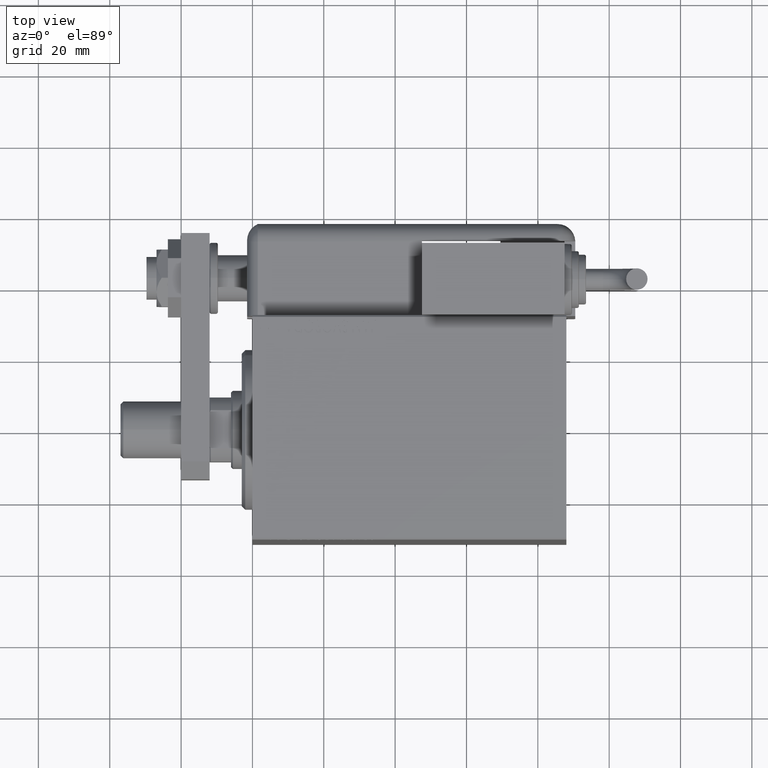
[diagram: clean part render]
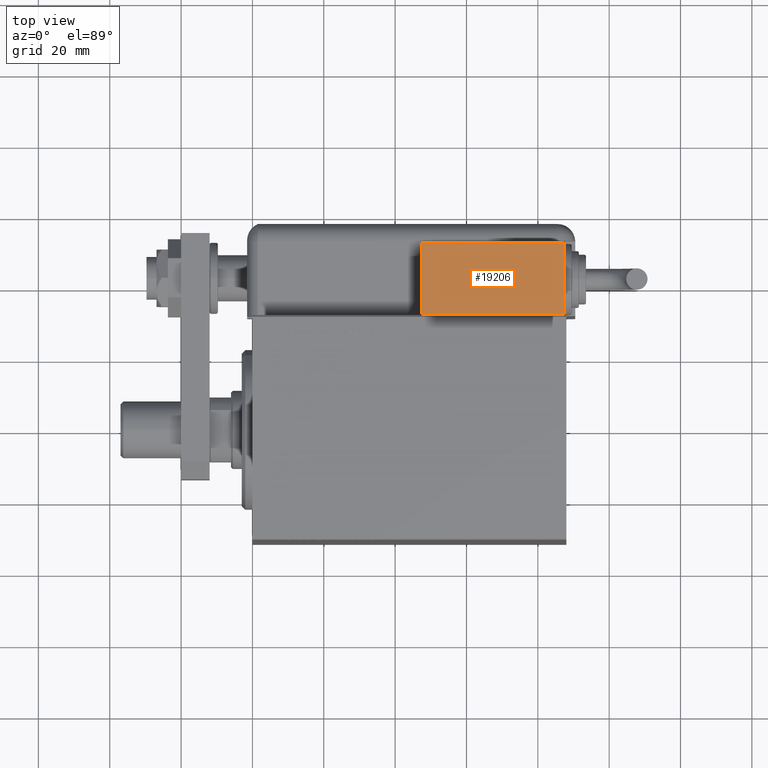
[diagram: same view with one face highlighted and labeled with its STEP entity id]
A machine part, top view. The second image highlights one B-rep face of the part: STEP entity #19206.
In plain terms, the highlighted planar face has unit normal (-0, -0, -1).
Its self-contained STEP definition (entity closure, byte-faithful):
#89 = CARTESIAN_POINT ( 'NONE',  ( 20.00000000000005329, -17.49999999999996092, -9.999999999999998224 ) ) ;
#1290 = LINE ( 'NONE', #9832, #50729 ) ;
#2178 = VERTEX_POINT ( 'NONE', #55912 ) ;
#3419 = VECTOR ( 'NONE', #25535, 1000.000000000000000 ) ;
#9523 = CARTESIAN_POINT ( 'NONE',  ( -19.99999999999994316, -17.49999999999996092, -9.999999999999998224 ) ) ;
#9832 = CARTESIAN_POINT ( 'NONE',  ( -19.99999999999994316, -17.49999999999996092, -9.999999999999998224 ) ) ;
#9958 = DIRECTION ( 'NONE',  ( -1.000000000000000000, -0.000000000000000000, -0.000000000000000000 ) ) ;
#12378 = EDGE_CURVE ( 'NONE', #40738, #25308, #30100, .T. ) ;
#13861 = EDGE_CURVE ( 'NONE', #2178, #40738, #38275, .T. ) ;
#16174 = VECTOR ( 'NONE', #9958, 1000.000000000000000 ) ;
#18417 = ORIENTED_EDGE ( 'NONE', *, *, #58855, .T. ) ;
#19206 = ADVANCED_FACE ( 'NONE', ( #39697 ), #31476, .F. ) ;
#19363 = CARTESIAN_POINT ( 'NONE',  ( 20.00000000000005329, -17.49999999999996092, -9.999999999999998224 ) ) ;
#23268 = DIRECTION ( 'NONE',  ( 0.000000000000000000, 0.000000000000000000, 1.000000000000000000 ) ) ;
#23303 = VECTOR ( 'NONE', #23268, 1000.000000000000000 ) ;
#23350 = ORIENTED_EDGE ( 'NONE', *, *, #12378, .T. ) ;
#25308 = VERTEX_POINT ( 'NONE', #9523 ) ;
#25535 = DIRECTION ( 'NONE',  ( -0.000000000000000000, -0.000000000000000000, -1.000000000000000000 ) ) ;
#26610 = DIRECTION ( 'NONE',  ( 0.000000000000000000, -0.000000000000000000, 1.000000000000000000 ) ) ;
#26924 = EDGE_CURVE ( 'NONE', #37510, #2178, #47575, .T. ) ;
#28066 = CARTESIAN_POINT ( 'NONE',  ( -19.99999999999994316, -17.49999999999996092, 10.00000000000000000 ) ) ;
#30100 = LINE ( 'NONE', #53822, #3419 ) ;
#31476 = PLANE ( 'NONE',  #47267 ) ;
#37510 = VERTEX_POINT ( 'NONE', #19363 ) ;
#38275 = LINE ( 'NONE', #52867, #16174 ) ;
#39697 = FACE_OUTER_BOUND ( 'NONE', #56801, .T. ) ;
#40738 = VERTEX_POINT ( 'NONE', #28066 ) ;
#47267 = AXIS2_PLACEMENT_3D ( 'NONE', #54600, #50026, #26610 ) ;
#47575 = LINE ( 'NONE', #89, #23303 ) ;
#50026 = DIRECTION ( 'NONE',  ( 0.000000000000000000, 1.000000000000000000, 0.000000000000000000 ) ) ;
#50729 = VECTOR ( 'NONE', #57316, 1000.000000000000000 ) ;
#52867 = CARTESIAN_POINT ( 'NONE',  ( -19.99999999999994316, -17.49999999999996092, 10.00000000000000000 ) ) ;
#53822 = CARTESIAN_POINT ( 'NONE',  ( -19.99999999999994316, -17.49999999999996092, -9.999999999999998224 ) ) ;
#54600 = CARTESIAN_POINT ( 'NONE',  ( 0.000000000000000000, -17.49999999999996092, 0.000000000000000000 ) ) ;
#55912 = CARTESIAN_POINT ( 'NONE',  ( 20.00000000000005329, -17.49999999999996092, 10.00000000000000000 ) ) ;
#56801 = EDGE_LOOP ( 'NONE', ( #59597, #57338, #23350, #18417 ) ) ;
#57316 = DIRECTION ( 'NONE',  ( 1.000000000000000000, 0.000000000000000000, 0.000000000000000000 ) ) ;
#57338 = ORIENTED_EDGE ( 'NONE', *, *, #13861, .T. ) ;
#58855 = EDGE_CURVE ( 'NONE', #25308, #37510, #1290, .T. ) ;
#59597 = ORIENTED_EDGE ( 'NONE', *, *, #26924, .T. ) ;